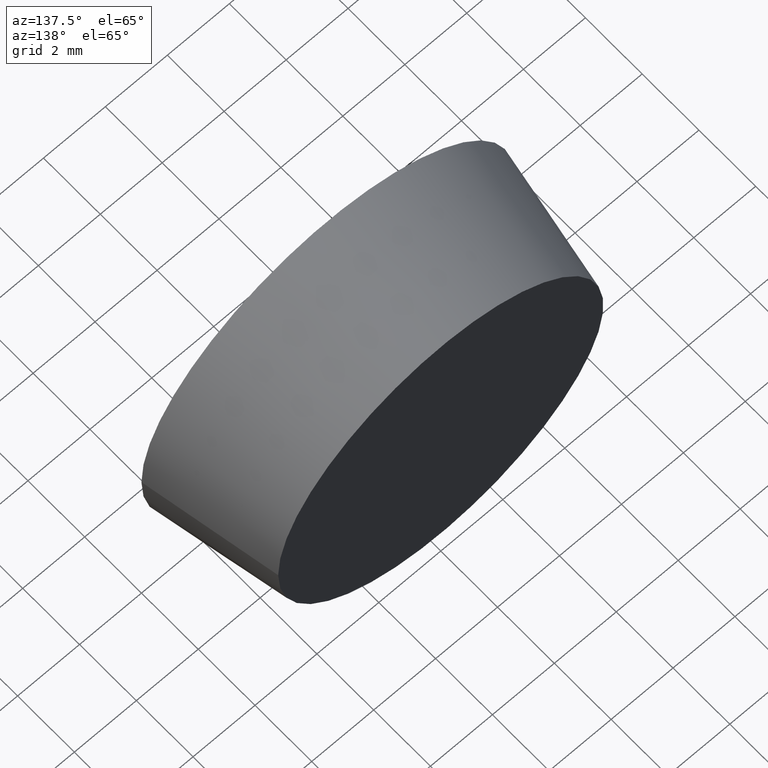
[diagram: clean part render]
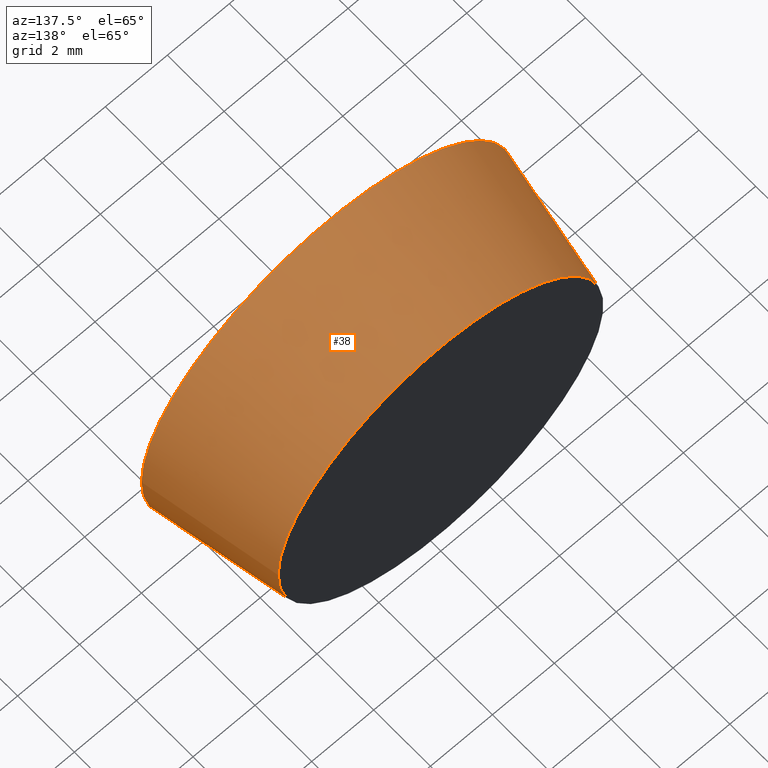
[diagram: same view with one face highlighted and labeled with its STEP entity id]
A machine part, auxiliary view. The second image highlights one B-rep face of the part: STEP entity #38.
In plain terms, the highlighted conical surface has half-angle 10.62 deg.
Its self-contained STEP definition (entity closure, byte-faithful):
#15=FACE_BOUND('',#23,.T.);
#16=CONICAL_SURFACE('',#45,6.,10.6196552761551);
#19=FACE_OUTER_BOUND('',#22,.T.);
#22=EDGE_LOOP('',(#32));
#23=EDGE_LOOP('',(#33));
#24=CIRCLE('',#42,5.25);
#25=CIRCLE('',#44,6.);
#26=VERTEX_POINT('',#60);
#27=VERTEX_POINT('',#63);
#28=EDGE_CURVE('',#26,#26,#24,.T.);
#29=EDGE_CURVE('',#27,#27,#25,.T.);
#32=ORIENTED_EDGE('',*,*,#29,.T.);
#33=ORIENTED_EDGE('',*,*,#28,.T.);
#38=ADVANCED_FACE('',(#19,#15),#16,.T.);
#42=AXIS2_PLACEMENT_3D('',#61,#50,#51);
#44=AXIS2_PLACEMENT_3D('',#64,#54,#55);
#45=AXIS2_PLACEMENT_3D('',#65,#56,#57);
#50=DIRECTION('center_axis',(0.,-1.,0.));
#51=DIRECTION('ref_axis',(1.,0.,0.));
#54=DIRECTION('center_axis',(0.,1.,0.));
#55=DIRECTION('ref_axis',(1.,0.,0.));
#56=DIRECTION('center_axis',(0.,-1.,0.));
#57=DIRECTION('ref_axis',(1.,0.,0.));
#60=CARTESIAN_POINT('',(5.25,4.,0.));
#61=CARTESIAN_POINT('Origin',(0.,4.,0.));
#63=CARTESIAN_POINT('',(6.,0.,0.));
#64=CARTESIAN_POINT('Origin',(0.,0.,0.));
#65=CARTESIAN_POINT('Origin',(0.,0.,0.));